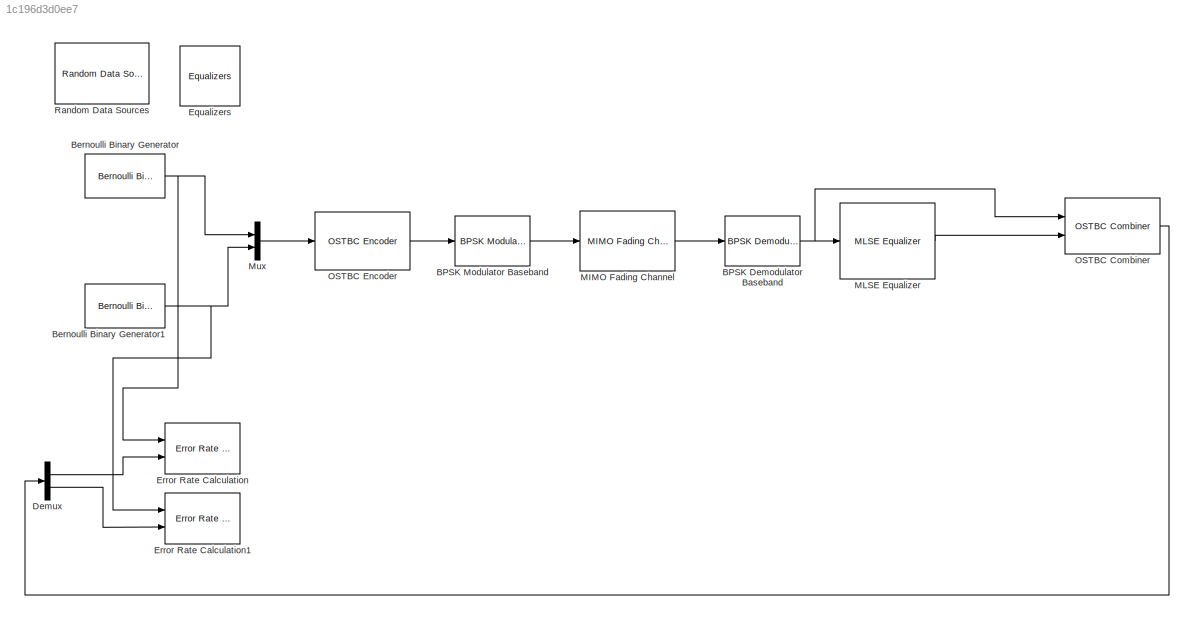
MODEL slx_1c196d3d0ee7
KIND model
CONFIG AbsTol = auto
CONFIG EnableMultiTasking = off
CONFIG FixedStep = auto
CONFIG MaxStep = auto
CONFIG MinStep = auto
CONFIG RelTol = 1e-3
CONFIG SampleTimeConstraint = Unconstrained
CONFIG Solver = VariableStepAuto
CONFIG SolverName = VariableStepAuto
CONFIG StartTime = 0.0
CONFIG StopTime = 10.0
BLOCK [Reference] BPSK Demodulator Baseband  REF=commdigbbndpm3/BPSK
Demodulator
Baseband
  Ports = [1, 1]
  SourceBlock = commdigbbndpm3/BPSK\nDemodulator\nBaseband
  SourceProductBaseCode = CM
  SourceProductName = Communications System Toolbox
  SourceType = BPSK Demodulator Baseband
BLOCK [Reference] BPSK Modulator Baseband  REF=commdigbbndpm3/BPSK
Modulator
Baseband
  Ports = [1, 1]
  SourceBlock = commdigbbndpm3/BPSK\nModulator\nBaseband
  SourceProductBaseCode = CM
  SourceProductName = Communications System Toolbox
  SourceType = BPSK Modulator Baseband
BLOCK [Reference] Bernoulli Binary Generator  REF=commrandsrc3/Bernoulli Binary
Generator
  Ports = [0, 1]
  SourceBlock = commrandsrc3/Bernoulli Binary\nGenerator
  SourceProductBaseCode = CM
  SourceProductName = Communications System Toolbox
  SourceType = Bernoulli Binary Generator
BLOCK [Reference] Bernoulli Binary Generator1  REF=commrandsrc3/Bernoulli Binary
Generator
  Ports = [0, 1]
  SourceBlock = commrandsrc3/Bernoulli Binary\nGenerator
  SourceProductBaseCode = CM
  SourceProductName = Communications System Toolbox
  SourceType = Bernoulli Binary Generator
BLOCK [Demux] Demux
  DisplayOption = bar
  Outputs = 2
  Ports = [1, 2]
BLOCK [Reference] Equalizers  REF=commlibv2/Equalizers
  Ports = []
  SourceBlock = commlibv2/Equalizers
  SourceProductBaseCode = CM
  SourceProductName = Communications System Toolbox
  SourceType = Equalizers
BLOCK [Reference] Error Rate Calculation  REF=commsink2/Error Rate
Calculation
  Ports = [2]
  SourceBlock = commsink2/Error Rate\nCalculation
  SourceProductBaseCode = CM
  SourceProductName = Communications System Toolbox
  SourceType = Error Rate Calculation
BLOCK [Reference] Error Rate Calculation1  REF=commsink2/Error Rate
Calculation
  Ports = [2]
  SourceBlock = commsink2/Error Rate\nCalculation
  SourceProductBaseCode = CM
  SourceProductName = Communications System Toolbox
  SourceType = Error Rate Calculation
BLOCK [Reference] MIMO Fading Channel  REF=commchan3/MIMO Fading Channel
  Ports = [1, 1]
  SourceBlock = commchan3/MIMO Fading Channel
  SourceProductBaseCode = CM
  SourceProductName = Communications System Toolbox
  SourceType = MIMO Fading Channel
BLOCK [Reference] MLSE Equalizer  REF=commeq2/MLSE Equalizer
  Ports = [1, 1]
  SourceBlock = commeq2/MLSE Equalizer
  SourceProductBaseCode = CM
  SourceProductName = Communications System Toolbox
  SourceType = MLSE Equalizer
BLOCK [Mux] Mux
  DisplayOption = bar
  Inputs = 2
  Ports = [2, 1]
BLOCK [Reference] OSTBC Combiner  REF=commmimo/OSTBC Combiner
  Ports = [2, 1]
  SourceBlock = commmimo/OSTBC Combiner
  SourceProductBaseCode = CM
  SourceProductName = Communications System Toolbox
  SourceType = OSTBC Combiner
BLOCK [Reference] OSTBC Encoder  REF=commmimo/OSTBC Encoder
  Ports = [1, 1]
  SourceBlock = commmimo/OSTBC Encoder
  SourceProductBaseCode = CM
  SourceProductName = Communications System Toolbox
  SourceType = OSTBC Encoder
BLOCK [Reference] Random Data Sources  REF=commsource2/Random Data Sources
  Ports = []
  SourceBlock = commsource2/Random Data Sources
  SourceProductBaseCode = CM
  SourceProductName = Communications System Toolbox
NET BPSK Demodulator Baseband:1 -> MLSE Equalizer:1, OSTBC Combiner:1
LINE BPSK Modulator Baseband:1 -> MIMO Fading Channel:1
NET Bernoulli Binary Generator1:1 -> Error Rate Calculation1:1, Mux:2
NET Bernoulli Binary Generator:1 -> Error Rate Calculation:1, Mux:1
LINE Demux:1 -> Error Rate Calculation:2
LINE Demux:2 -> Error Rate Calculation1:2
LINE MIMO Fading Channel:1 -> BPSK Demodulator Baseband:1
LINE MLSE Equalizer:1 -> OSTBC Combiner:2
LINE Mux:1 -> OSTBC Encoder:1
LINE OSTBC Combiner:1 -> Demux:1
LINE OSTBC Encoder:1 -> BPSK Modulator Baseband:1
note: NET lines group one-source signal fan-out (src -> all destinations, sorted); 1:1 wires keep LINE
